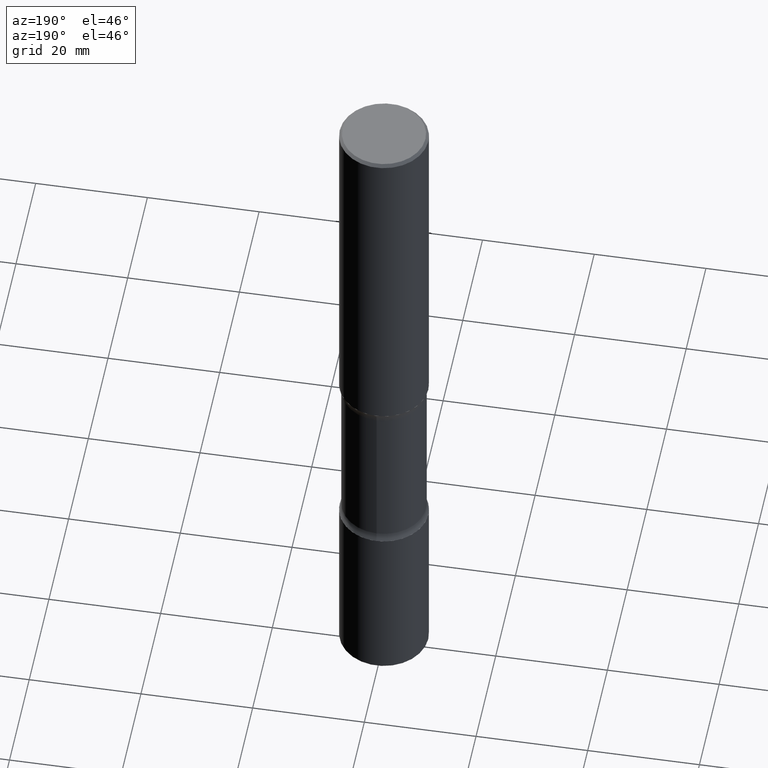
[diagram: clean part render]
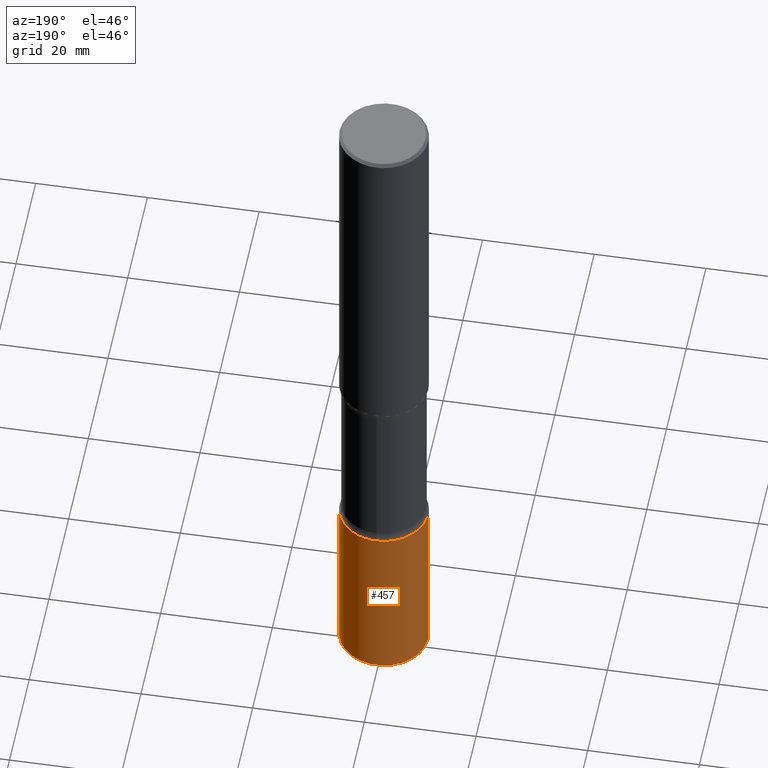
[diagram: same view with one face highlighted and labeled with its STEP entity id]
A machine part, auxiliary view. The second image highlights one B-rep face of the part: STEP entity #457.
In plain terms, the highlighted cylindrical surface (partial cylindrical patch) has radius 7.9375 mm, axis along (-0, 0, 1).
Its self-contained STEP definition (entity closure, byte-faithful):
#16 = CARTESIAN_POINT ( 'NONE',  ( -0.3125000000000000000, 2.220446049250313081E-15, -1.537167215704658232E-29 ) ) ;
#24 = CARTESIAN_POINT ( 'NONE',  ( 1.220288934286383144E-28, -1.742249188082729666E-14, -4.990000000000000213 ) ) ;
#25 = VECTOR ( 'NONE', #550, 39.37007874015748143 ) ;
#56 = CARTESIAN_POINT ( 'NONE',  ( 0.3125000000000000555, -1.527523085743875734E-14, -3.750000000000000000 ) ) ;
#61 = LINE ( 'NONE', #16, #25 ) ;
#64 = DIRECTION ( 'NONE',  ( -2.445468806185136597E-29, 3.491481338843145583E-15, 1.000000000000000000 ) ) ;
#65 = CARTESIAN_POINT ( 'NONE',  ( -0.3124999999999999445, -1.520204583157698358E-14, -4.990000000000000213 ) ) ;
#72 = DIRECTION ( 'NONE',  ( 1.000000000000000000, -6.982962677686268288E-15, 0.000000000000000000 ) ) ;
#90 = DIRECTION ( 'NONE',  ( -2.445468806185136877E-29, 3.491481338843145188E-15, 1.000000000000000000 ) ) ;
#102 = FACE_OUTER_BOUND ( 'NONE', #181, .T. ) ;
#104 = AXIS2_PLACEMENT_3D ( 'NONE', #285, #280, #72 ) ;
#115 = AXIS2_PLACEMENT_3D ( 'NONE', #269, #64, #405 ) ;
#116 = ORIENTED_EDGE ( 'NONE', *, *, #407, .T. ) ;
#120 = EDGE_CURVE ( 'NONE', #204, #392, #121, .T. ) ;
#121 = CIRCLE ( 'NONE', #104, 0.3125000000000000555 ) ;
#156 = ORIENTED_EDGE ( 'NONE', *, *, #529, .T. ) ;
#178 = CARTESIAN_POINT ( 'NONE',  ( -0.3125000000000000555, -1.303732740149423396E-14, -3.750000000000000000 ) ) ;
#181 = EDGE_LOOP ( 'NONE', ( #156, #116, #390, #376 ) ) ;
#199 = AXIS2_PLACEMENT_3D ( 'NONE', #24, #236, #465 ) ;
#204 = VERTEX_POINT ( 'NONE', #56 ) ;
#216 = EDGE_CURVE ( 'NONE', #382, #204, #341, .T. ) ;
#236 = DIRECTION ( 'NONE',  ( -2.445468806185136597E-29, 3.491481338843145583E-15, 1.000000000000000000 ) ) ;
#269 = CARTESIAN_POINT ( 'NONE',  ( 0.000000000000000000, 0.000000000000000000, 0.000000000000000000 ) ) ;
#280 = DIRECTION ( 'NONE',  ( -2.445468806185136597E-29, 3.491481338843145583E-15, 1.000000000000000000 ) ) ;
#285 = CARTESIAN_POINT ( 'NONE',  ( 9.170508023194262238E-29, -1.309305502066179741E-14, -3.750000000000000000 ) ) ;
#294 = CARTESIAN_POINT ( 'NONE',  ( 0.3125000000000000000, -2.182175836776958347E-15, 1.523805242436230075E-29 ) ) ;
#303 = CIRCLE ( 'NONE', #199, 0.3124999999999998890 ) ;
#341 = LINE ( 'NONE', #294, #432 ) ;
#376 = ORIENTED_EDGE ( 'NONE', *, *, #216, .F. ) ;
#382 = VERTEX_POINT ( 'NONE', #445 ) ;
#390 = ORIENTED_EDGE ( 'NONE', *, *, #120, .F. ) ;
#392 = VERTEX_POINT ( 'NONE', #178 ) ;
#405 = DIRECTION ( 'NONE',  ( 1.000000000000000000, -6.982962677686266711E-15, 4.876176775795936353E-29 ) ) ;
#407 = EDGE_CURVE ( 'NONE', #477, #392, #61, .T. ) ;
#432 = VECTOR ( 'NONE', #90, 39.37007874015748143 ) ;
#445 = CARTESIAN_POINT ( 'NONE',  ( 0.3124999999999999445, -1.960466771760425343E-14, -4.990000000000000213 ) ) ;
#448 = CYLINDRICAL_SURFACE ( 'NONE', #115, 0.3125000000000000000 ) ;
#457 = ADVANCED_FACE ( 'NONE', ( #102 ), #448, .T. ) ;
#465 = DIRECTION ( 'NONE',  ( 1.000000000000000000, -6.982962677686265133E-15, 0.000000000000000000 ) ) ;
#477 = VERTEX_POINT ( 'NONE', #65 ) ;
#529 = EDGE_CURVE ( 'NONE', #382, #477, #303, .T. ) ;
#550 = DIRECTION ( 'NONE',  ( -2.445468806185136877E-29, 3.491481338843145188E-15, 1.000000000000000000 ) ) ;